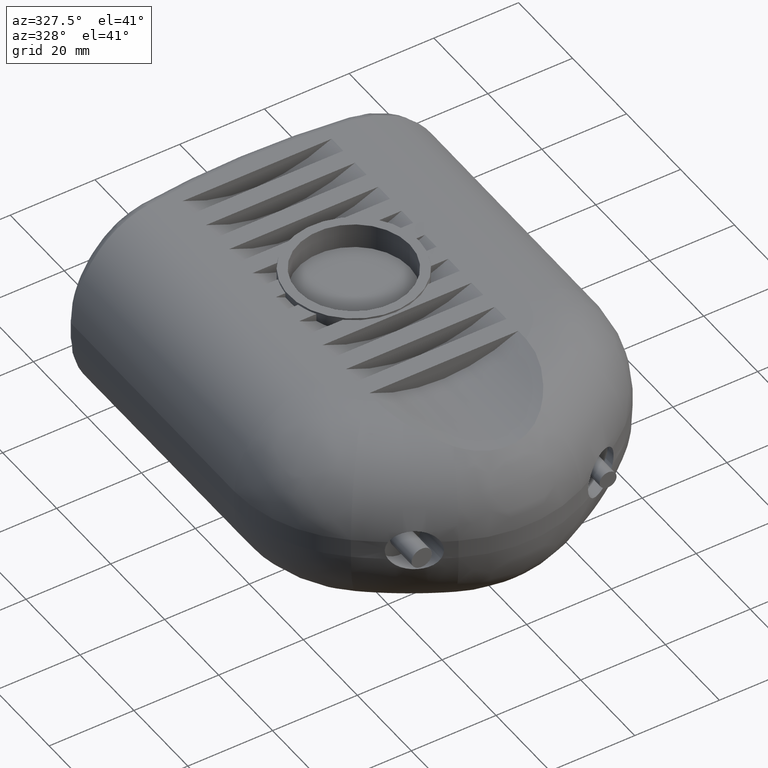
[diagram: clean part render]
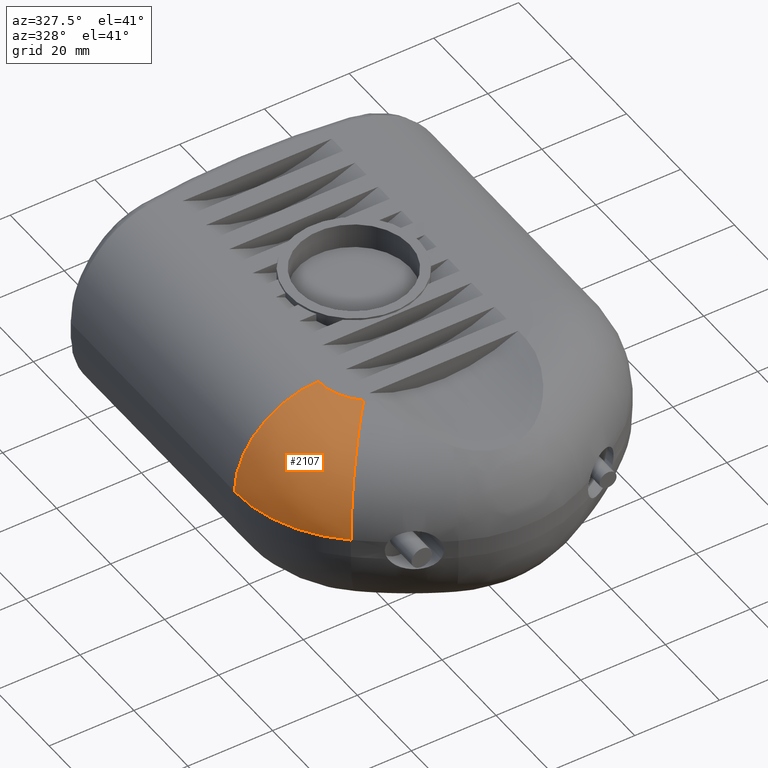
[diagram: same view with one face highlighted and labeled with its STEP entity id]
A machine part, auxiliary view. The second image highlights one B-rep face of the part: STEP entity #2107.
In plain terms, the highlighted face is a freeform B-spline surface patch.
Its self-contained STEP definition (entity closure, byte-faithful):
#23=(
BOUNDED_SURFACE()
B_SPLINE_SURFACE(2,2,((#4216,#4217,#4218),(#4219,#4220,#4221),(#4222,#4223,
#4224)),.UNSPECIFIED.,.F.,.F.,.F.)
B_SPLINE_SURFACE_WITH_KNOTS((3,3),(3,3),(-1.5707963267949,0.),(-0.875605384877278,
0.),.UNSPECIFIED.)
GEOMETRIC_REPRESENTATION_ITEM()
RATIONAL_B_SPLINE_SURFACE(((1.,0.905685398331855,1.),(0.707106781186547,
0.640416286782094,0.707106781186547),(1.,0.905685398331855,1.)))
REPRESENTATION_ITEM('')
SURFACE()
);
#548=FACE_OUTER_BOUND('',#707,.T.);
#707=EDGE_LOOP('',(#1844,#1845,#1846,#1847));
#737=CIRCLE('',#2145,19.8);
#844=CIRCLE('',#2354,19.8);
#845=CIRCLE('',#2355,12.6);
#846=CIRCLE('',#2356,32.4);
#873=VERTEX_POINT('',#3198);
#874=VERTEX_POINT('',#3200);
#1039=VERTEX_POINT('',#4169);
#1045=VERTEX_POINT('',#4213);
#1074=EDGE_CURVE('',#874,#873,#737,.T.);
#1332=EDGE_CURVE('',#1039,#1045,#844,.T.);
#1334=EDGE_CURVE('',#873,#1045,#845,.T.);
#1335=EDGE_CURVE('',#1039,#874,#846,.T.);
#1844=ORIENTED_EDGE('',*,*,#1074,.T.);
#1845=ORIENTED_EDGE('',*,*,#1334,.T.);
#1846=ORIENTED_EDGE('',*,*,#1332,.F.);
#1847=ORIENTED_EDGE('',*,*,#1335,.T.);
#2107=ADVANCED_FACE('',(#548),#23,.F.);
#2145=AXIS2_PLACEMENT_3D('',#3201,#2423,#2424);
#2354=AXIS2_PLACEMENT_3D('',#4214,#2964,#2965);
#2355=AXIS2_PLACEMENT_3D('',#4225,#2967,#2968);
#2356=AXIS2_PLACEMENT_3D('',#4226,#2969,#2970);
#2423=DIRECTION('center_axis',(-0.767931411367808,0.640532081503063,0.));
#2424=DIRECTION('ref_axis',(-0.640532081503063,-0.767931411367808,0.));
#2964=DIRECTION('center_axis',(0.,1.,0.));
#2965=DIRECTION('ref_axis',(-1.,0.,0.));
#2967=DIRECTION('center_axis',(0.,0.,-1.));
#2968=DIRECTION('ref_axis',(-0.905685398331855,-0.423950420743356,0.));
#2969=DIRECTION('center_axis',(0.,0.,1.));
#2970=DIRECTION('ref_axis',(-0.905685398331855,-0.423950420743356,0.));
#3198=CARTESIAN_POINT('',(-19.6707042269386,9.56601259896042,22.));
#3200=CARTESIAN_POINT('',(-32.3532394406992,-5.63902934612218,2.2));
#3201=CARTESIAN_POINT('Origin',(-19.6707042269386,9.56601259896042,2.2));
#4169=CARTESIAN_POINT('',(-44.,19.2419483821948,2.2));
#4213=CARTESIAN_POINT('',(-24.2,19.2419483821948,22.));
#4214=CARTESIAN_POINT('Origin',(-24.2,19.2419483821948,2.2));
#4216=CARTESIAN_POINT('Ctrl Pts',(-19.6707042269386,9.56601259896043,22.));
#4217=CARTESIAN_POINT('Ctrl Pts',(-24.2,13.3439011008705,22.));
#4218=CARTESIAN_POINT('Ctrl Pts',(-24.2,19.2419483821948,22.));
#4219=CARTESIAN_POINT('Ctrl Pts',(-32.3532394406993,-5.63902934612218,22.));
#4220=CARTESIAN_POINT('Ctrl Pts',(-44.,4.07554108736097,22.));
#4221=CARTESIAN_POINT('Ctrl Pts',(-44.,19.2419483821948,22.));
#4222=CARTESIAN_POINT('Ctrl Pts',(-32.3532394406993,-5.63902934612218,2.2));
#4223=CARTESIAN_POINT('Ctrl Pts',(-44.,4.07554108736097,2.2));
#4224=CARTESIAN_POINT('Ctrl Pts',(-44.,19.2419483821948,2.2));
#4225=CARTESIAN_POINT('Origin',(-11.6,19.2419483821948,22.));
#4226=CARTESIAN_POINT('Origin',(-11.6,19.2419483821948,2.2));